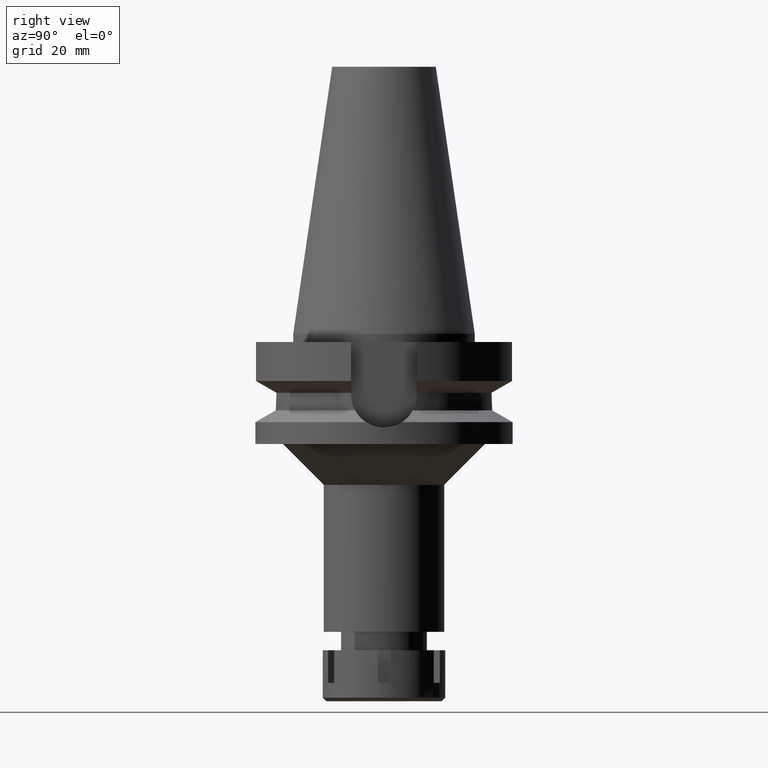
[diagram: clean part render]
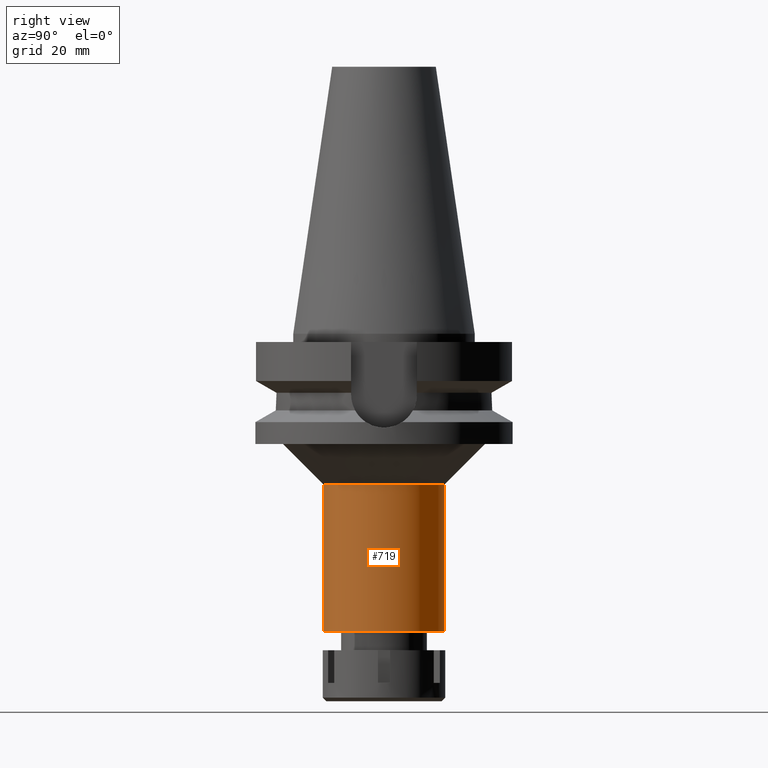
[diagram: same view with one face highlighted and labeled with its STEP entity id]
A machine part, right view. The second image highlights one B-rep face of the part: STEP entity #719.
In plain terms, the highlighted cylindrical surface (partial cylindrical patch) has radius 14.75 mm, axis along (0, 0, -1).
Its self-contained STEP definition (entity closure, byte-faithful):
#199 = CIRCLE ( 'NONE', #2193, 14.75000000000000000 ) ;
#333 = EDGE_CURVE ( 'NONE', #3253, #1804, #2691, .T. ) ;
#362 = CARTESIAN_POINT ( 'NONE',  ( 0.0000000000000000000, 14.75000000000000000, -37.00000000000000000 ) ) ;
#400 = CYLINDRICAL_SURFACE ( 'NONE', #426, 14.75000000000000000 ) ;
#426 = AXIS2_PLACEMENT_3D ( 'NONE', #3183, #1848, #697 ) ;
#602 = AXIS2_PLACEMENT_3D ( 'NONE', #879, #1660, #3119 ) ;
#697 = DIRECTION ( 'NONE',  ( 0.0000000000000000000, -1.000000000000000000, 0.0000000000000000000 ) ) ;
#719 = ADVANCED_FACE ( 'NONE', ( #2635 ), #400, .T. ) ;
#733 = VERTEX_POINT ( 'NONE', #362 ) ;
#759 = ORIENTED_EDGE ( 'NONE', *, *, #1040, .T. ) ;
#794 = CARTESIAN_POINT ( 'NONE',  ( 0.0000000000000000000, -14.75000000000000000, -37.00000000000000000 ) ) ;
#879 = CARTESIAN_POINT ( 'NONE',  ( 0.0000000000000000000, 0.0000000000000000000, -37.00000000000000000 ) ) ;
#1040 = EDGE_CURVE ( 'NONE', #1804, #3291, #199, .T. ) ;
#1071 = CARTESIAN_POINT ( 'NONE',  ( 0.0000000000000000000, -14.75000000000000000, -37.00000000000000000 ) ) ;
#1141 = EDGE_CURVE ( 'NONE', #733, #3291, #1687, .T. ) ;
#1352 = DIRECTION ( 'NONE',  ( 0.0000000000000000000, 0.0000000000000000000, -1.000000000000000000 ) ) ;
#1489 = VECTOR ( 'NONE', #1738, 1000.000000000000000 ) ;
#1495 = CIRCLE ( 'NONE', #602, 14.75000000000000000 ) ;
#1525 = EDGE_CURVE ( 'NONE', #733, #3253, #1495, .T. ) ;
#1660 = DIRECTION ( 'NONE',  ( 0.0000000000000000000, 0.0000000000000000000, -1.000000000000000000 ) ) ;
#1662 = ORIENTED_EDGE ( 'NONE', *, *, #333, .T. ) ;
#1669 = CARTESIAN_POINT ( 'NONE',  ( 0.0000000000000000000, 14.75000000000000000, -73.00000000000000000 ) ) ;
#1683 = EDGE_LOOP ( 'NONE', ( #3623, #1662, #759, #1867 ) ) ;
#1687 = LINE ( 'NONE', #1997, #1489 ) ;
#1738 = DIRECTION ( 'NONE',  ( 0.0000000000000000000, 0.0000000000000000000, -1.000000000000000000 ) ) ;
#1804 = VERTEX_POINT ( 'NONE', #3245 ) ;
#1848 = DIRECTION ( 'NONE',  ( 0.0000000000000000000, 0.0000000000000000000, -1.000000000000000000 ) ) ;
#1867 = ORIENTED_EDGE ( 'NONE', *, *, #1141, .F. ) ;
#1997 = CARTESIAN_POINT ( 'NONE',  ( 0.0000000000000000000, 14.75000000000000000, -37.00000000000000000 ) ) ;
#2193 = AXIS2_PLACEMENT_3D ( 'NONE', #3641, #2475, #3596 ) ;
#2305 = VECTOR ( 'NONE', #1352, 1000.000000000000000 ) ;
#2475 = DIRECTION ( 'NONE',  ( 0.0000000000000000000, 0.0000000000000000000, 1.000000000000000000 ) ) ;
#2635 = FACE_OUTER_BOUND ( 'NONE', #1683, .T. ) ;
#2691 = LINE ( 'NONE', #794, #2305 ) ;
#3119 = DIRECTION ( 'NONE',  ( 0.0000000000000000000, 1.000000000000000000, 0.0000000000000000000 ) ) ;
#3183 = CARTESIAN_POINT ( 'NONE',  ( 0.0000000000000000000, 2.116434598286000100E-14, 72.81999999999999318 ) ) ;
#3245 = CARTESIAN_POINT ( 'NONE',  ( 0.0000000000000000000, -14.75000000000000000, -73.00000000000000000 ) ) ;
#3253 = VERTEX_POINT ( 'NONE', #1071 ) ;
#3291 = VERTEX_POINT ( 'NONE', #1669 ) ;
#3596 = DIRECTION ( 'NONE',  ( 0.0000000000000000000, -1.000000000000000000, 0.0000000000000000000 ) ) ;
#3623 = ORIENTED_EDGE ( 'NONE', *, *, #1525, .T. ) ;
#3641 = CARTESIAN_POINT ( 'NONE',  ( 0.0000000000000000000, 2.116434598286000100E-14, -73.00000000000000000 ) ) ;